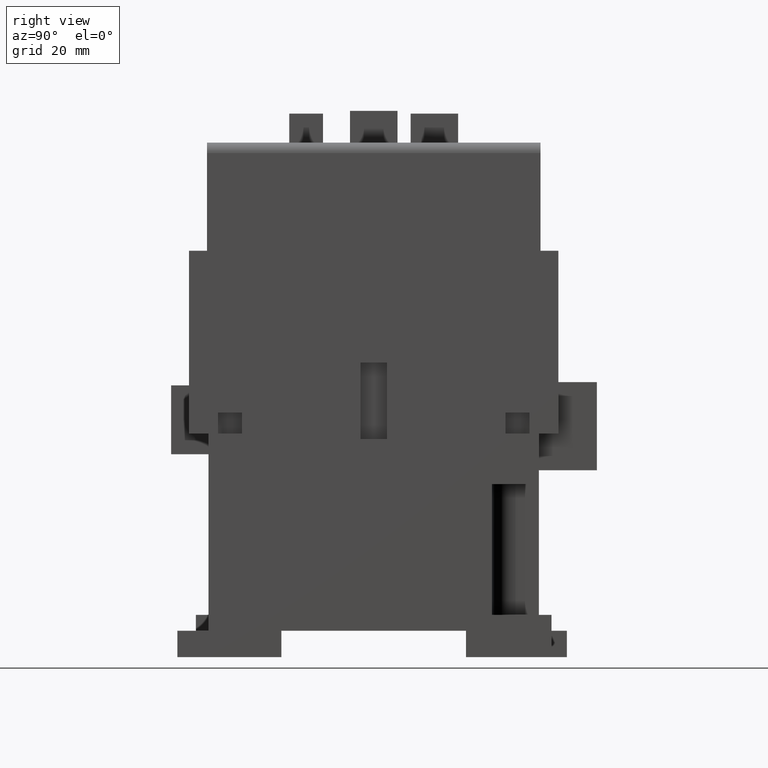
[diagram: clean part render]
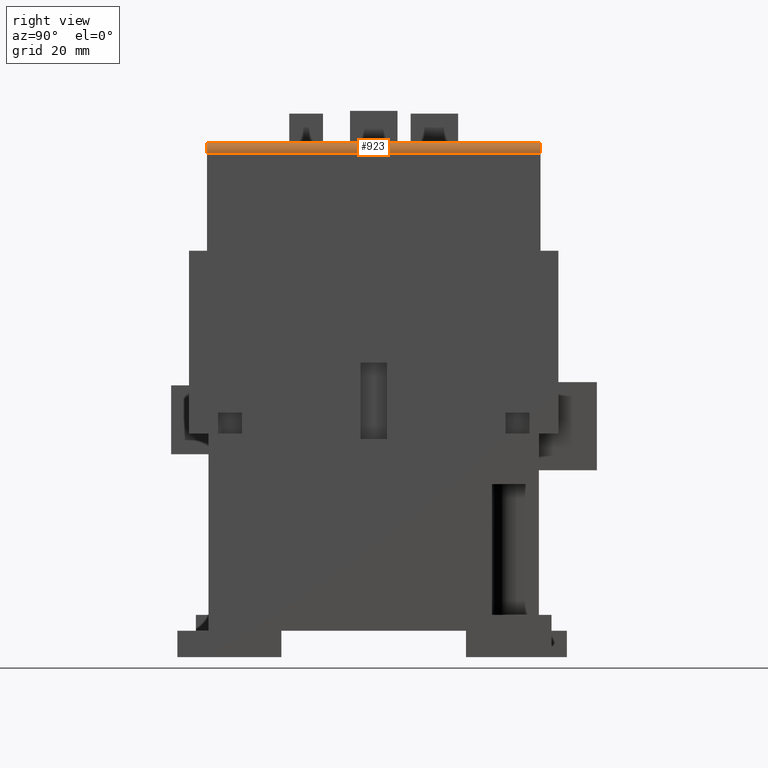
[diagram: same view with one face highlighted and labeled with its STEP entity id]
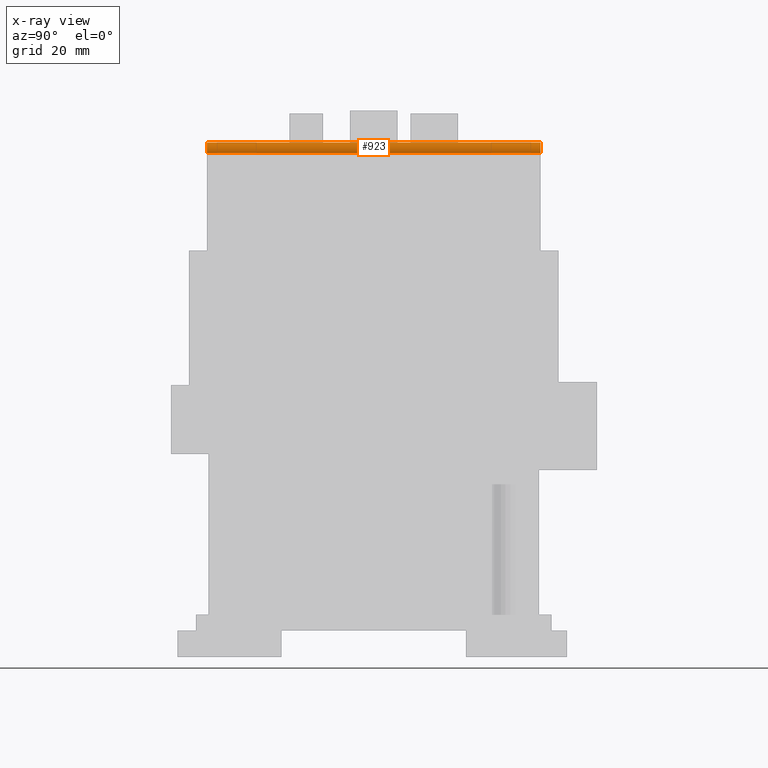
[diagram: x-ray of the same camera — body ghosted, the highlighted face saturated]
A machine part, right view. The second image highlights one B-rep face of the part: STEP entity #923.
The next image is the same camera in x-ray: the body ghosted, the highlighted face saturated — about 0% of this face is hidden behind the body in this view.
In plain terms, the highlighted cylindrical surface (edge-blend (fillet) strip) has radius 2 mm, axis along (0, -1, 0).
Its self-contained STEP definition (entity closure, byte-faithful):
#120=CYLINDRICAL_SURFACE('',#7980,2.);
#134=CIRCLE('',#7567,2.);
#153=CIRCLE('',#7604,2.);
#531=FACE_OUTER_BOUND('',#1884,.T.);
#923=ADVANCED_FACE('',(#531),#120,.T.);
#1884=EDGE_LOOP('',(#3801,#3802,#3803,#3804));
#3801=ORIENTED_EDGE('',*,*,#5081,.F.);
#3802=ORIENTED_EDGE('',*,*,#4846,.F.);
#3803=ORIENTED_EDGE('',*,*,#4997,.F.);
#3804=ORIENTED_EDGE('',*,*,#4727,.F.);
#4032=VERTEX_POINT('',#10062);
#4033=VERTEX_POINT('',#10064);
#4135=VERTEX_POINT('',#10296);
#4137=VERTEX_POINT('',#10300);
#4727=EDGE_CURVE('',#4032,#4033,#5750,.T.);
#4846=EDGE_CURVE('',#4137,#4135,#5866,.T.);
#4997=EDGE_CURVE('',#4033,#4137,#134,.T.);
#5081=EDGE_CURVE('',#4135,#4032,#153,.T.);
#5750=LINE('',#10063,#6669);
#5866=LINE('',#10301,#6785);
#6669=VECTOR('',#8095,1.);
#6785=VECTOR('',#8245,1.);
#7567=AXIS2_PLACEMENT_3D('',#10582,#8424,#8425);
#7604=AXIS2_PLACEMENT_3D('',#10755,#8563,#8564);
#7980=AXIS2_PLACEMENT_3D('',#11921,#9794,#9795);
#8095=DIRECTION('',(0.,-1.,0.));
#8245=DIRECTION('',(0.,1.,0.));
#8424=DIRECTION('',(0.,-1.,0.));
#8425=DIRECTION('',(0.,0.,-1.));
#8563=DIRECTION('',(0.,1.,0.));
#8564=DIRECTION('',(0.,0.,1.));
#9794=DIRECTION('',(0.,-1.,0.));
#9795=DIRECTION('',(0.,0.,-1.));
#10062=CARTESIAN_POINT('',(22.3,31.6,90.5));
#10063=CARTESIAN_POINT('',(22.3,1.83880688453542E-012,90.5));
#10064=CARTESIAN_POINT('',(22.3,-31.6,90.5));
#10296=CARTESIAN_POINT('',(20.3,31.6,92.5));
#10300=CARTESIAN_POINT('',(20.3,-31.6,92.5));
#10301=CARTESIAN_POINT('',(20.3,31.6,92.5));
#10582=CARTESIAN_POINT('',(20.3,-31.6,90.5));
#10755=CARTESIAN_POINT('',(20.3,31.6,90.5));
#11921=CARTESIAN_POINT('',(20.3,1.83880688453542E-012,90.5));